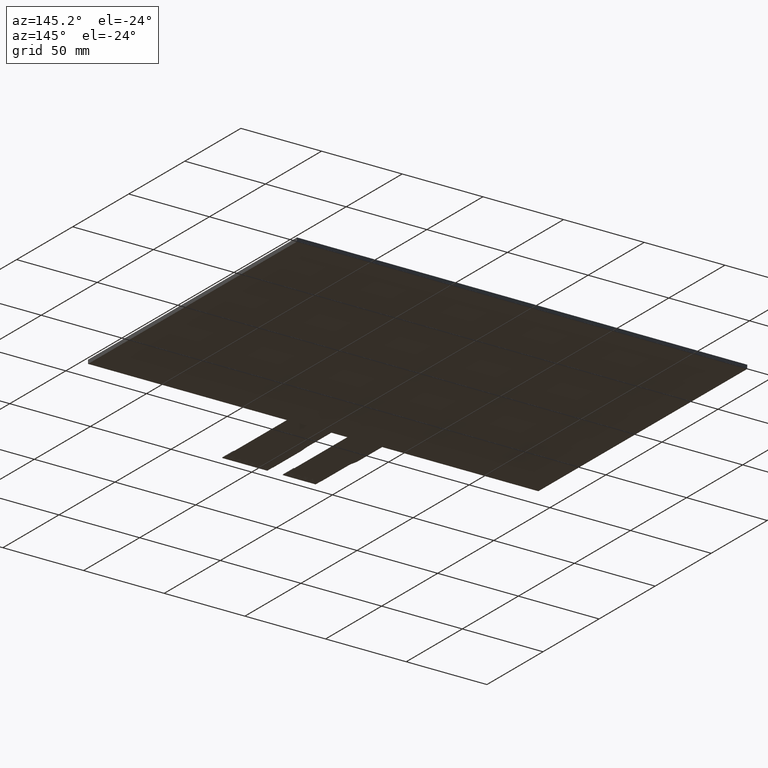
[diagram: clean part render]
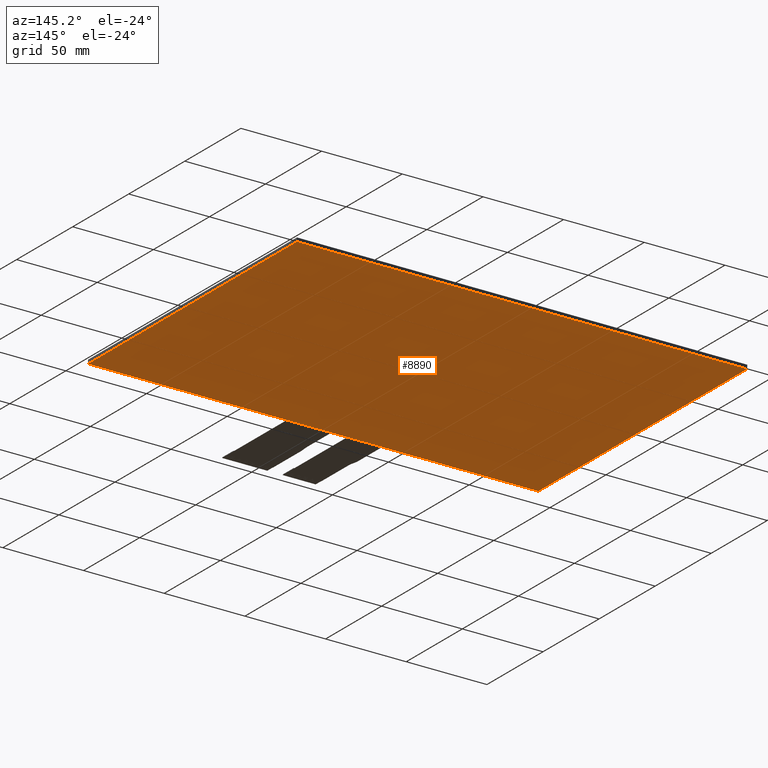
[diagram: same view with one face highlighted and labeled with its STEP entity id]
A machine part, auxiliary view. The second image highlights one B-rep face of the part: STEP entity #8890.
In plain terms, the highlighted planar face has unit normal (0, 0, -1).
Its self-contained STEP definition (entity closure, byte-faithful):
#552=PLANE('',#9340);
#974=FACE_OUTER_BOUND('',#1400,.T.);
#1400=EDGE_LOOP('',(#8461,#8462,#8463,#8464));
#2634=LINE('',#13932,#3874);
#2636=LINE('',#13936,#3876);
#2638=LINE('',#13940,#3878);
#2640=LINE('',#13943,#3880);
#3874=VECTOR('',#11426,10.);
#3876=VECTOR('',#11430,10.);
#3878=VECTOR('',#11434,10.);
#3880=VECTOR('',#11438,10.);
#4717=VERTEX_POINT('',#13929);
#4718=VERTEX_POINT('',#13931);
#4719=VERTEX_POINT('',#13935);
#4720=VERTEX_POINT('',#13939);
#5962=EDGE_CURVE('',#4718,#4717,#2634,.T.);
#5964=EDGE_CURVE('',#4719,#4718,#2636,.T.);
#5966=EDGE_CURVE('',#4720,#4719,#2638,.T.);
#5968=EDGE_CURVE('',#4717,#4720,#2640,.T.);
#8461=ORIENTED_EDGE('',*,*,#5968,.T.);
#8462=ORIENTED_EDGE('',*,*,#5966,.T.);
#8463=ORIENTED_EDGE('',*,*,#5964,.T.);
#8464=ORIENTED_EDGE('',*,*,#5962,.T.);
#8890=ADVANCED_FACE('',(#974),#552,.T.);
#9340=AXIS2_PLACEMENT_3D('',#13945,#11441,#11442);
#11426=DIRECTION('',(-1.90698533483655E-16,1.,0.));
#11430=DIRECTION('',(-1.,-6.36458917735668E-17,0.));
#11434=DIRECTION('',(9.53492667418277E-17,-1.,0.));
#11438=DIRECTION('',(1.,0.,0.));
#11441=DIRECTION('center_axis',(0.,0.,-1.));
#11442=DIRECTION('ref_axis',(-1.,0.,0.));
#13929=CARTESIAN_POINT('',(-140.6,89.6000000000001,-2.35));
#13931=CARTESIAN_POINT('',(-140.6,-96.7,-2.35));
#13932=CARTESIAN_POINT('',(-140.6,89.6,-2.35));
#13935=CARTESIAN_POINT('',(138.5,-96.7,-2.35));
#13936=CARTESIAN_POINT('',(-140.6,-96.7,-2.35));
#13939=CARTESIAN_POINT('',(138.5,89.6000000000001,-2.35));
#13940=CARTESIAN_POINT('',(138.5,-96.7,-2.35));
#13943=CARTESIAN_POINT('',(138.5,89.6000000000001,-2.35));
#13945=CARTESIAN_POINT('Origin',(-1.05,-3.54999999999997,-2.35));